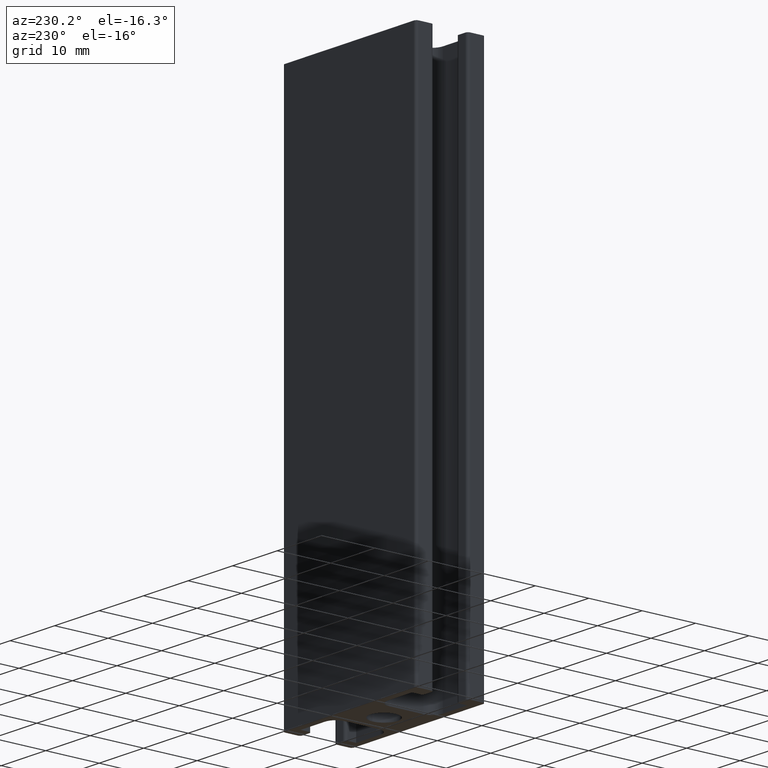
[diagram: clean part render]
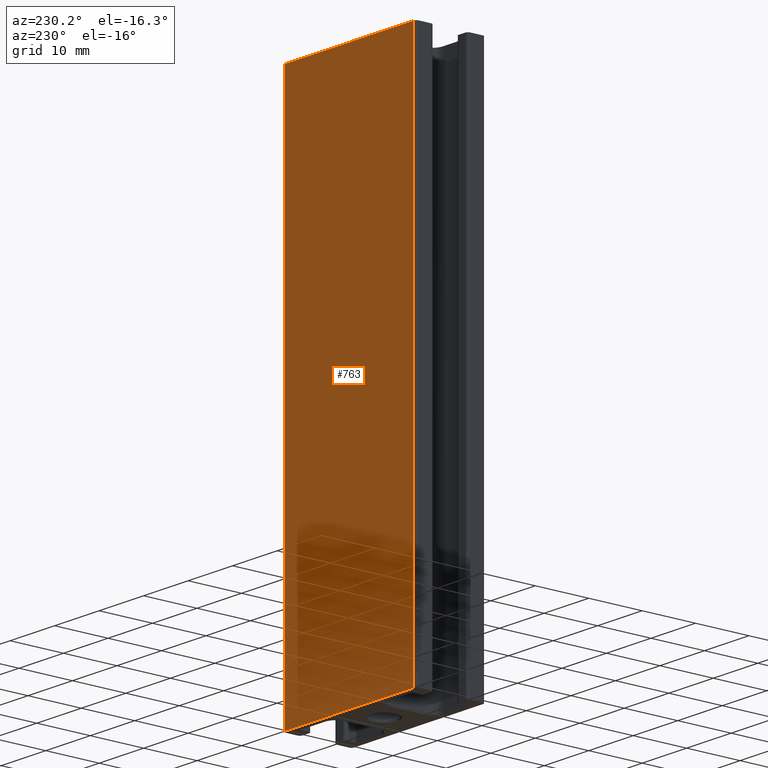
[diagram: same view with one face highlighted and labeled with its STEP entity id]
A machine part, auxiliary view. The second image highlights one B-rep face of the part: STEP entity #763.
In plain terms, the highlighted planar face has unit normal (0, 1, 0).
Its self-contained STEP definition (entity closure, byte-faithful):
#34=PLANE('',#837);
#101=LINE('',#1257,#177);
#108=LINE('',#1277,#184);
#109=LINE('',#1281,#185);
#110=LINE('',#1282,#186);
#177=VECTOR('',#1026,29.);
#184=VECTOR('',#1049,100.);
#185=VECTOR('',#1054,100.);
#186=VECTOR('',#1055,29.);
#227=FACE_OUTER_BOUND('',#268,.T.);
#268=EDGE_LOOP('',(#662,#663,#664,#665));
#372=VERTEX_POINT('',#1254);
#373=VERTEX_POINT('',#1256);
#378=VERTEX_POINT('',#1276);
#379=VERTEX_POINT('',#1280);
#474=EDGE_CURVE('',#373,#372,#101,.T.);
#484=EDGE_CURVE('',#378,#373,#108,.T.);
#486=EDGE_CURVE('',#379,#372,#109,.T.);
#487=EDGE_CURVE('',#378,#379,#110,.T.);
#662=ORIENTED_EDGE('',*,*,#474,.T.);
#663=ORIENTED_EDGE('',*,*,#486,.F.);
#664=ORIENTED_EDGE('',*,*,#487,.F.);
#665=ORIENTED_EDGE('',*,*,#484,.T.);
#763=ADVANCED_FACE('',(#227),#34,.T.);
#837=AXIS2_PLACEMENT_3D('',#1279,#1052,#1053);
#1026=DIRECTION('',(1.,0.,0.));
#1049=DIRECTION('',(0.,0.,1.));
#1052=DIRECTION('center_axis',(0.,1.,0.));
#1053=DIRECTION('ref_axis',(-1.,0.,0.));
#1054=DIRECTION('',(0.,0.,1.));
#1055=DIRECTION('',(1.,0.,0.));
#1254=CARTESIAN_POINT('',(14.5,6.5,100.));
#1256=CARTESIAN_POINT('',(-14.5,6.5,100.));
#1257=CARTESIAN_POINT('',(7.25,6.5,100.));
#1276=CARTESIAN_POINT('',(-14.5,6.5,0.));
#1277=CARTESIAN_POINT('',(-14.5,6.5,0.));
#1279=CARTESIAN_POINT('Origin',(14.5,6.5,0.));
#1280=CARTESIAN_POINT('',(14.5,6.5,0.));
#1281=CARTESIAN_POINT('',(14.5,6.5,0.));
#1282=CARTESIAN_POINT('',(7.25,6.5,0.));